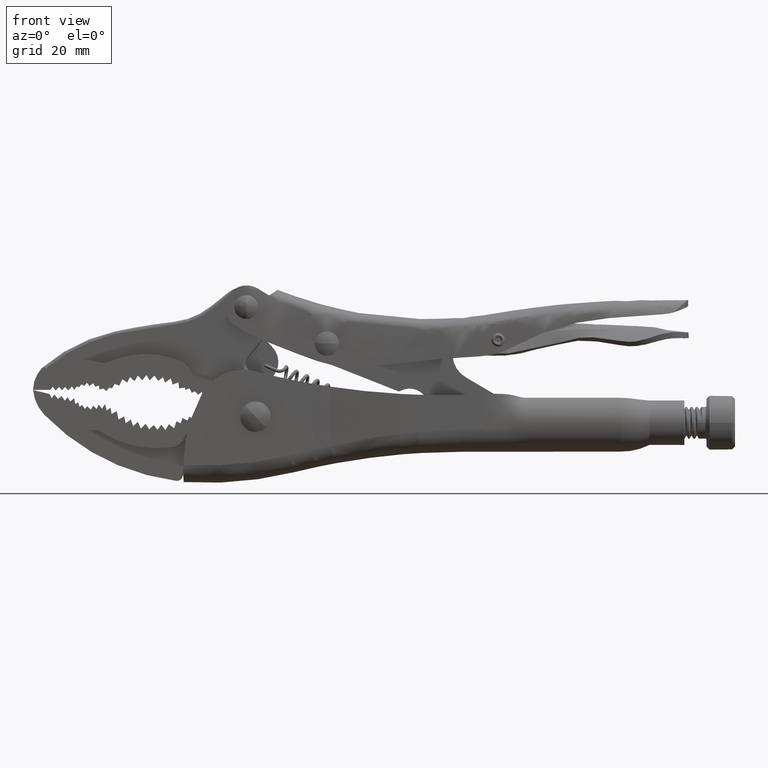
[diagram: clean part render]
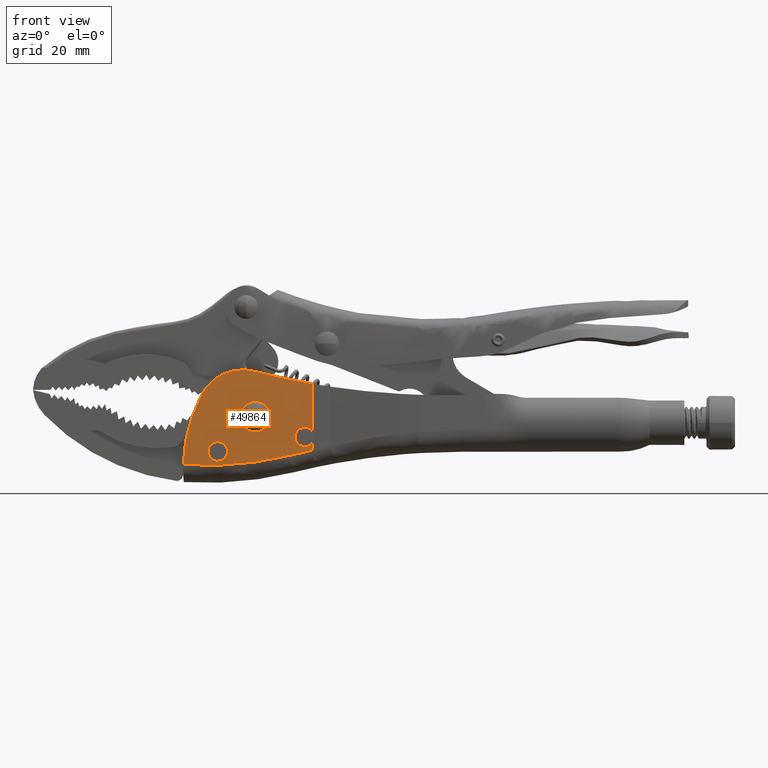
[diagram: same view with one face highlighted and labeled with its STEP entity id]
A machine part, front view. The second image highlights one B-rep face of the part: STEP entity #49864.
In plain terms, the highlighted planar face has unit normal (0, -1, 0).
Its self-contained STEP definition (entity closure, byte-faithful):
#756 = DIRECTION ( 'NONE',  ( 0.0000000000000000000, 0.0000000000000000000, 1.000000000000000000 ) ) ;
#2213 = DIRECTION ( 'NONE',  ( 0.0000000000000000000, 0.0000000000000000000, 1.000000000000000000 ) ) ;
#2486 = ORIENTED_EDGE ( 'NONE', *, *, #21249, .F. ) ;
#2634 = VERTEX_POINT ( 'NONE', #50169 ) ;
#4364 = DIRECTION ( 'NONE',  ( 0.0000000000000000000, -1.000000000000000000, 0.0000000000000000000 ) ) ;
#5243 = DIRECTION ( 'NONE',  ( 0.0000000000000000000, -1.000000000000000000, 0.0000000000000000000 ) ) ;
#5462 = AXIS2_PLACEMENT_3D ( 'NONE', #54918, #8979, #62533 ) ;
#6556 = CARTESIAN_POINT ( 'NONE',  ( 3.302135202669357600, -16.85000000000000100, -13.19710401222925400 ) ) ;
#7003 = CARTESIAN_POINT ( 'NONE',  ( -6.149493101762074900, -16.85000000000000500, 5.468281106711816400 ) ) ;
#8335 = EDGE_CURVE ( 'NONE', #68253, #85877, #92277, .T. ) ;
#8425 = DIRECTION ( 'NONE',  ( 0.0000000000000000000, -1.000000000000000000, 0.0000000000000000000 ) ) ;
#8979 = DIRECTION ( 'NONE',  ( 0.0000000000000000000, -1.000000000000000000, 0.0000000000000000000 ) ) ;
#10085 = VECTOR ( 'NONE', #62527, 1000.000000000000000 ) ;
#10813 = CARTESIAN_POINT ( 'NONE',  ( 62.50000000000004300, -16.85000000000000100, 274.0000000000000000 ) ) ;
#10854 = B_SPLINE_CURVE_WITH_KNOTS ( 'NONE', 3,
 ( #37172, #82695, #97983, #52513, #6556, #60158 ),
 .UNSPECIFIED., .F., .F.,
 ( 4, 2, 4 ),
 ( 0.0000000000000000000, 0.5000000000000000000, 1.000000000000000000 ),
 .UNSPECIFIED. ) ;
#11901 = EDGE_CURVE ( 'NONE', #59134, #28058, #52957, .T. ) ;
#13753 = CARTESIAN_POINT ( 'NONE',  ( -3.045821901569968600, -16.85000000000000100, 17.23406528270202300 ) ) ;
#17065 = EDGE_CURVE ( 'NONE', #28058, #85014, #31216, .T. ) ;
#18575 = DIRECTION ( 'NONE',  ( 0.0000000000000000000, 0.0000000000000000000, 1.000000000000000000 ) ) ;
#19830 = PLANE ( 'NONE',  #86472 ) ;
#21192 = CIRCLE ( 'NONE', #29962, 3.162399749023893800 ) ;
#21249 = EDGE_CURVE ( 'NONE', #92092, #62361, #40612, .T. ) ;
#21852 = ORIENTED_EDGE ( 'NONE', *, *, #27647, .F. ) ;
#21887 = CIRCLE ( 'NONE', #80026, 54.00000000000024900 ) ;
#22805 = VERTEX_POINT ( 'NONE', #56381 ) ;
#24240 = ORIENTED_EDGE ( 'NONE', *, *, #8335, .F. ) ;
#24767 = AXIS2_PLACEMENT_3D ( 'NONE', #10813, #64356, #18575 ) ;
#24947 = CARTESIAN_POINT ( 'NONE',  ( 9.302303847778182100, -16.85000000000000100, -11.71150684931448500 ) ) ;
#25702 = EDGE_CURVE ( 'NONE', #81099, #31870, #21192, .T. ) ;
#26968 = CARTESIAN_POINT ( 'NONE',  ( 11.88102753516792200, -16.85000000000000100, -11.07300517755132000 ) ) ;
#27320 = CARTESIAN_POINT ( 'NONE',  ( 14.40000000000000400, -16.85000000000000100, -5.400000000000003000 ) ) ;
#27627 = DIRECTION ( 'NONE',  ( 0.0000000000000000000, -1.000000000000000000, 0.0000000000000000000 ) ) ;
#27647 = EDGE_CURVE ( 'NONE', #22805, #31486, #71235, .T. ) ;
#27872 = ORIENTED_EDGE ( 'NONE', *, *, #17065, .F. ) ;
#28058 = VERTEX_POINT ( 'NONE', #49554 ) ;
#28231 = EDGE_CURVE ( 'NONE', #85877, #68253, #94992, .T. ) ;
#28352 = EDGE_CURVE ( 'NONE', #48134, #42791, #10854, .T. ) ;
#29149 = CARTESIAN_POINT ( 'NONE',  ( 17.06744954432475900, -16.85000000000000100, -7.098671569523678400 ) ) ;
#29962 = AXIS2_PLACEMENT_3D ( 'NONE', #54365, #8425, #62003 ) ;
#30240 = ORIENTED_EDGE ( 'NONE', *, *, #11901, .F. ) ;
#31216 = CIRCLE ( 'NONE', #57305, 16.00000000000000000 ) ;
#31486 = VERTEX_POINT ( 'NONE', #29149 ) ;
#31870 = VERTEX_POINT ( 'NONE', #45799 ) ;
#34481 = CARTESIAN_POINT ( 'NONE',  ( -15.60000000000000000, -16.85000000000000100, -10.39999999999999700 ) ) ;
#34988 = DIRECTION ( 'NONE',  ( 0.0000000000000000000, 0.0000000000000000000, -1.000000000000000000 ) ) ;
#36924 = CIRCLE ( 'NONE', #24767, 265.0000000000001100 ) ;
#37172 = CARTESIAN_POINT ( 'NONE',  ( -27.48478224137157600, -16.84999999999999800, -14.91809268987928600 ) ) ;
#37633 = EDGE_LOOP ( 'NONE', ( #63594, #45752, #65983, #27872, #30240, #70717, #93307, #95724, #98092, #21852, #42232 ) ) ;
#40612 = CIRCLE ( 'NONE', #54801, 3.162399749023892900 ) ;
#40990 = CARTESIAN_POINT ( 'NONE',  ( -29.59891833146132400, -16.85000000000000100, 29.00000000000002500 ) ) ;
#42153 = DIRECTION ( 'NONE',  ( 0.0000000000000000000, 0.0000000000000000000, -1.000000000000000000 ) ) ;
#42232 = ORIENTED_EDGE ( 'NONE', *, *, #81218, .F. ) ;
#42314 = CARTESIAN_POINT ( 'NONE',  ( 14.46940943401675200, -16.85000000000000100, -10.47640629176153700 ) ) ;
#42791 = VERTEX_POINT ( 'NONE', #94620 ) ;
#43385 = ORIENTED_EDGE ( 'NONE', *, *, #64973, .F. ) ;
#43638 = CARTESIAN_POINT ( 'NONE',  ( -15.60000000000000000, -16.85000000000000100, -10.39999999999999700 ) ) ;
#45556 = CARTESIAN_POINT ( 'NONE',  ( -7.003305488079917900, -16.85000000000000100, 1.731216394110480100 ) ) ;
#45752 = ORIENTED_EDGE ( 'NONE', *, *, #74272, .T. ) ;
#45799 = CARTESIAN_POINT ( 'NONE',  ( 13.58264514577551900, -16.85000000000000100, -2.345052665772772800 ) ) ;
#46782 = DIRECTION ( 'NONE',  ( 0.0000000000000000000, 1.000000000000000000, 0.0000000000000000000 ) ) ;
#47893 = VECTOR ( 'NONE', #65903, 1000.000000000000000 ) ;
#48043 = CARTESIAN_POINT ( 'NONE',  ( -12.77157213331561000, -16.85000000000000100, -11.81448505668655700 ) ) ;
#48134 = VERTEX_POINT ( 'NONE', #98586 ) ;
#48179 = VERTEX_POINT ( 'NONE', #60766 ) ;
#48196 = DIRECTION ( 'NONE',  ( -0.0000000000000000000, -1.000000000000000000, -0.0000000000000000000 ) ) ;
#49432 = CIRCLE ( 'NONE', #59700, 3.162399749023892900 ) ;
#49554 = CARTESIAN_POINT ( 'NONE',  ( -7.003305488079917900, -16.85000000000000100, 17.73121639411048300 ) ) ;
#49864 = ADVANCED_FACE ( 'NONE', ( #64698, #87269, #67055 ), #19830, .T. ) ;
#50169 = CARTESIAN_POINT ( 'NONE',  ( 17.06744954432476300, -16.85000000000000500, -9.921710191945699400 ) ) ;
#50337 = CARTESIAN_POINT ( 'NONE',  ( -2.599999999999991700, -16.85000000000000500, 1.600000000000000100 ) ) ;
#51218 = CARTESIAN_POINT ( 'NONE',  ( -2.599999999999991700, -16.85000000000000500, 1.600000000000000100 ) ) ;
#51307 = DIRECTION ( 'NONE',  ( 0.0000000000000000000, 0.0000000000000000000, -1.000000000000000000 ) ) ;
#52513 = CARTESIAN_POINT ( 'NONE',  ( -2.787539412379901500, -16.84999999999999400, -14.20908393490472900 ) ) ;
#52957 = CIRCLE ( 'NONE', #75555, 16.00000000000000000 ) ;
#53215 = DIRECTION ( 'NONE',  ( 0.0000000000000000000, 0.0000000000000000000, 1.000000000000000000 ) ) ;
#54365 = CARTESIAN_POINT ( 'NONE',  ( 14.40000000000000400, -16.85000000000000100, -5.400000000000003000 ) ) ;
#54614 = EDGE_CURVE ( 'NONE', #42791, #2634, #67004, .T. ) ;
#54801 = AXIS2_PLACEMENT_3D ( 'NONE', #34481, #87690, #42153 ) ;
#54918 = CARTESIAN_POINT ( 'NONE',  ( 14.40000000000000400, -16.85000000000000100, -5.400000000000003000 ) ) ;
#56381 = CARTESIAN_POINT ( 'NONE',  ( 15.21735485422448700, -16.85000000000000100, -8.454947334227233200 ) ) ;
#57305 = AXIS2_PLACEMENT_3D ( 'NONE', #45556, #98688, #53215 ) ;
#57987 = DIRECTION ( 'NONE',  ( 0.0000000000000000000, 0.0000000000000000000, -1.000000000000000000 ) ) ;
#58848 = DIRECTION ( 'NONE',  ( 0.0000000000000000000, 0.0000000000000000000, -1.000000000000000000 ) ) ;
#59134 = VERTEX_POINT ( 'NONE', #78544 ) ;
#59700 = AXIS2_PLACEMENT_3D ( 'NONE', #43638, #96784, #51307 ) ;
#60158 = CARTESIAN_POINT ( 'NONE',  ( 9.302303847778182100, -16.85000000000000100, -11.71150684931448500 ) ) ;
#60766 = CARTESIAN_POINT ( 'NONE',  ( 17.06744954432478400, -16.85000000000001200, 12.92360627760202400 ) ) ;
#62003 = DIRECTION ( 'NONE',  ( 0.0000000000000000000, 0.0000000000000000000, -1.000000000000000000 ) ) ;
#62361 = VERTEX_POINT ( 'NONE', #82349 ) ;
#62527 = DIRECTION ( 'NONE',  ( -0.0000000000000000000, 0.0000000000000000000, 1.000000000000000000 ) ) ;
#62533 = DIRECTION ( 'NONE',  ( 0.0000000000000000000, 0.0000000000000000000, -1.000000000000000000 ) ) ;
#63594 = ORIENTED_EDGE ( 'NONE', *, *, #25702, .F. ) ;
#64356 = DIRECTION ( 'NONE',  ( 0.0000000000000000000, 1.000000000000000000, 0.0000000000000000000 ) ) ;
#64698 = FACE_BOUND ( 'NONE', #95913, .T. ) ;
#64973 = EDGE_CURVE ( 'NONE', #62361, #92092, #49432, .T. ) ;
#65903 = DIRECTION ( 'NONE',  ( -0.0000000000000000000, 0.0000000000000000000, 1.000000000000000000 ) ) ;
#65954 = EDGE_CURVE ( 'NONE', #59134, #48134, #21887, .T. ) ;
#65966 = AXIS2_PLACEMENT_3D ( 'NONE', #50337, #4364, #57987 ) ;
#65983 = ORIENTED_EDGE ( 'NONE', *, *, #82827, .T. ) ;
#67004 = B_SPLINE_CURVE_WITH_KNOTS ( 'NONE', 3,
 ( #24947, #26968, #42314, #95482 ),
 .UNSPECIFIED., .F., .F.,
 ( 4, 4 ),
 ( 0.0000000000000000000, 1.000000000000000000 ),
 .UNSPECIFIED. ) ;
#67055 = FACE_BOUND ( 'NONE', #69762, .T. ) ;
#67566 = AXIS2_PLACEMENT_3D ( 'NONE', #27320, #80535, #34988 ) ;
#68108 = LINE ( 'NONE', #73201, #47893 ) ;
#68253 = VERTEX_POINT ( 'NONE', #7003 ) ;
#69762 = EDGE_LOOP ( 'NONE', ( #24240, #85007 ) ) ;
#70717 = ORIENTED_EDGE ( 'NONE', *, *, #65954, .T. ) ;
#71087 = LINE ( 'NONE', #92747, #10085 ) ;
#71235 = CIRCLE ( 'NONE', #5462, 3.162399749023893800 ) ;
#73201 = CARTESIAN_POINT ( 'NONE',  ( 17.06744954432475900, -16.85000000000000100, 29.00000000000002500 ) ) ;
#74272 = EDGE_CURVE ( 'NONE', #81099, #48179, #68108, .T. ) ;
#75555 = AXIS2_PLACEMENT_3D ( 'NONE', #92286, #46782, #756 ) ;
#78544 = CARTESIAN_POINT ( 'NONE',  ( -21.10996043042921500, -16.85000000000000100, 9.281202244262177100 ) ) ;
#78568 = CIRCLE ( 'NONE', #67566, 3.162399749023893800 ) ;
#80026 = AXIS2_PLACEMENT_3D ( 'NONE', #93707, #48196, #2213 ) ;
#80535 = DIRECTION ( 'NONE',  ( 0.0000000000000000000, -1.000000000000000000, 0.0000000000000000000 ) ) ;
#80837 = DIRECTION ( 'NONE',  ( 0.0000000000000000000, -0.0000000000000000000, -1.000000000000000000 ) ) ;
#81099 = VERTEX_POINT ( 'NONE', #87537 ) ;
#81218 = EDGE_CURVE ( 'NONE', #31870, #22805, #78568, .T. ) ;
#82261 = AXIS2_PLACEMENT_3D ( 'NONE', #51218, #5243, #58848 ) ;
#82349 = CARTESIAN_POINT ( 'NONE',  ( -18.42842786668438700, -16.85000000000000100, -8.985514943313434700 ) ) ;
#82695 = CARTESIAN_POINT ( 'NONE',  ( -21.31701578428060300, -16.85000000000000100, -15.34255434452156100 ) ) ;
#82827 = EDGE_CURVE ( 'NONE', #48179, #85014, #36924, .T. ) ;
#85007 = ORIENTED_EDGE ( 'NONE', *, *, #28231, .F. ) ;
#85014 = VERTEX_POINT ( 'NONE', #13753 ) ;
#85877 = VERTEX_POINT ( 'NONE', #97096 ) ;
#86472 = AXIS2_PLACEMENT_3D ( 'NONE', #40990, #27627, #80837 ) ;
#87269 = FACE_OUTER_BOUND ( 'NONE', #37633, .T. ) ;
#87537 = CARTESIAN_POINT ( 'NONE',  ( 17.06744954432475900, -16.85000000000000100, -3.701328430476327600 ) ) ;
#87690 = DIRECTION ( 'NONE',  ( 0.0000000000000000000, -1.000000000000000000, 0.0000000000000000000 ) ) ;
#92092 = VERTEX_POINT ( 'NONE', #48043 ) ;
#92277 = CIRCLE ( 'NONE', #65966, 5.250000000000020400 ) ;
#92286 = CARTESIAN_POINT ( 'NONE',  ( -7.003305488079917900, -16.85000000000000100, 1.731216394110480100 ) ) ;
#92747 = CARTESIAN_POINT ( 'NONE',  ( 17.06744954432475900, -16.85000000000000100, 29.00000000000002500 ) ) ;
#93307 = ORIENTED_EDGE ( 'NONE', *, *, #28352, .T. ) ;
#93707 = CARTESIAN_POINT ( 'NONE',  ( 26.49999999999999600, -16.85000000000000100, -16.19999999999999900 ) ) ;
#94620 = CARTESIAN_POINT ( 'NONE',  ( 9.302303847778182100, -16.85000000000000100, -11.71150684931448500 ) ) ;
#94992 = CIRCLE ( 'NONE', #82261, 5.250000000000020400 ) ;
#95482 = CARTESIAN_POINT ( 'NONE',  ( 17.06744954432476300, -16.85000000000000500, -9.921710191945699400 ) ) ;
#95724 = ORIENTED_EDGE ( 'NONE', *, *, #54614, .T. ) ;
#95913 = EDGE_LOOP ( 'NONE', ( #2486, #43385 ) ) ;
#96784 = DIRECTION ( 'NONE',  ( 0.0000000000000000000, -1.000000000000000000, 0.0000000000000000000 ) ) ;
#97096 = CARTESIAN_POINT ( 'NONE',  ( 0.9494931017620926700, -16.85000000000000500, -2.268281106711816300 ) ) ;
#97252 = EDGE_CURVE ( 'NONE', #2634, #31486, #71087, .T. ) ;
#97983 = CARTESIAN_POINT ( 'NONE',  ( -15.14590058235910400, -16.85000000000000100, -15.28580929977825800 ) ) ;
#98092 = ORIENTED_EDGE ( 'NONE', *, *, #97252, .T. ) ;
#98586 = CARTESIAN_POINT ( 'NONE',  ( -27.48478224137157600, -16.84999999999999800, -14.91809268987928600 ) ) ;
#98688 = DIRECTION ( 'NONE',  ( 0.0000000000000000000, 1.000000000000000000, 0.0000000000000000000 ) ) ;